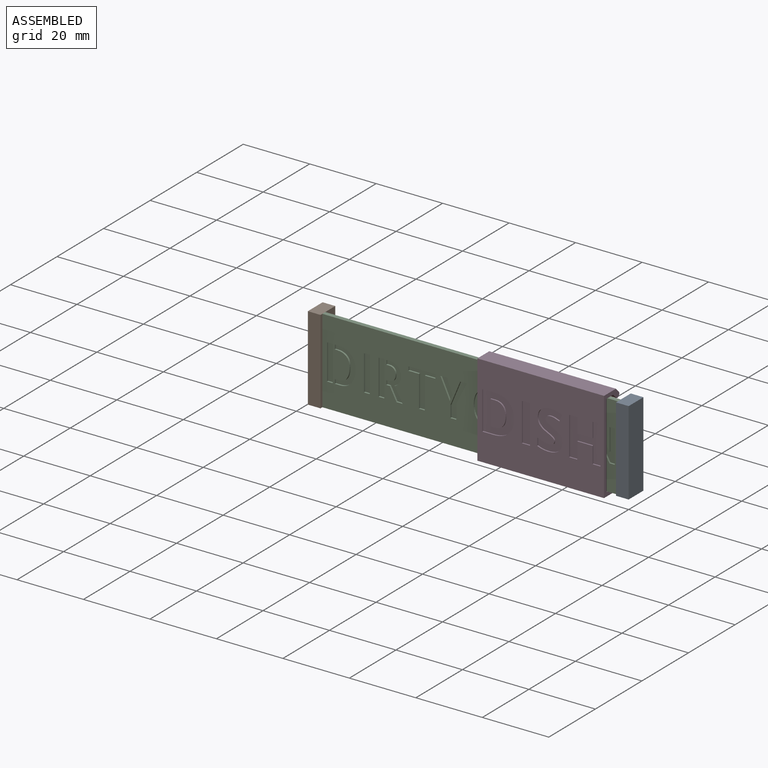
[diagram: assembled view]
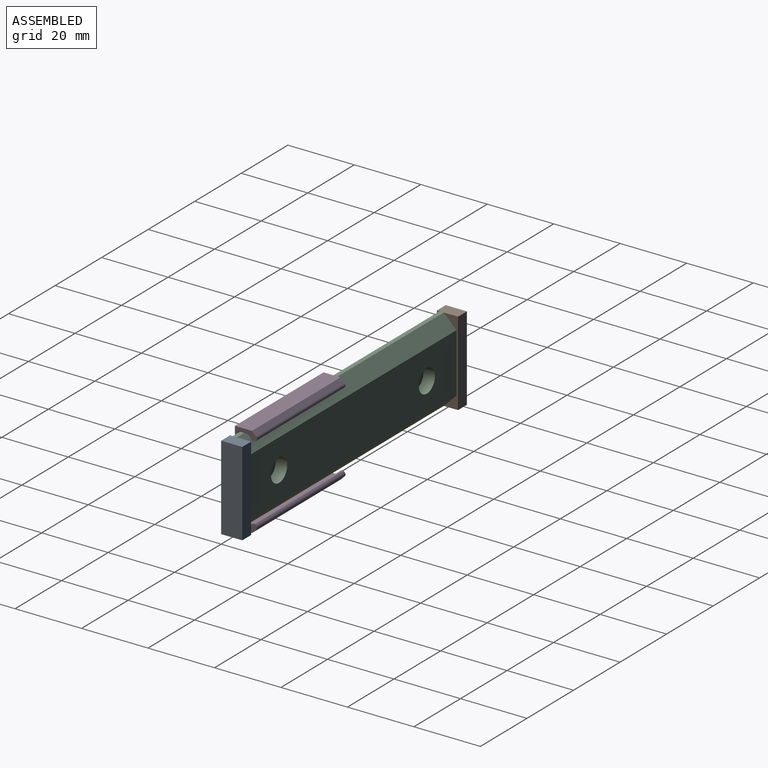
[diagram: assembled view, second angle]
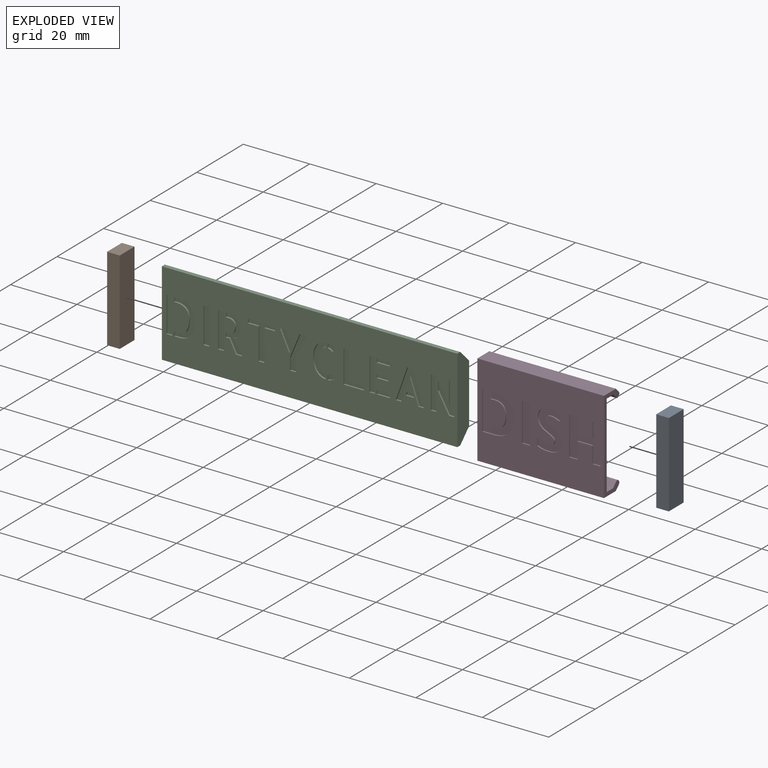
[diagram: exploded view]
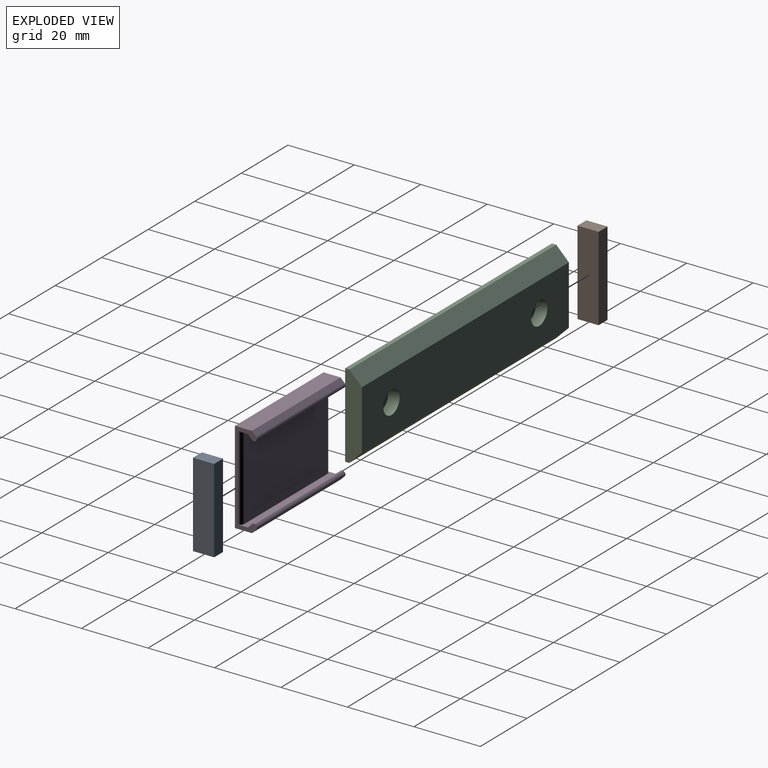
[diagram: exploded view, second angle]
ASSEMBLY  parts=4 mates=4
PART A: 6 faces, bbox 6.4x25.4x3.8 mm
  f0: plane 6.35x3.81mm, normal (0,-1,0), area 24.2mm2, adj f1,f3,f4,f5
  f1: plane 25.4x3.81mm, normal (1,0,0), area 96.8mm2, adj f0,f2,f4,f5
  f2: plane 6.35x3.81mm, normal (0,1,0), area 24.2mm2, adj f1,f3,f4,f5
  f3: plane 25.4x3.81mm, normal (-1,0,0), area 96.8mm2, adj f0,f2,f4,f5
  f4: plane 25.4x6.35mm, normal (0,0,1), area 161.3mm2, adj f0,f1,f2,f3
  f5: plane 25.4x6.35mm, normal (0,0,-1), area 161.3mm2, adj f0,f1,f2,f3
PART B: same geometry as A
PART C: 182 faces, bbox 88.9x25.4x5.1 mm
  f0: plane 88.9x25.4mm, normal (0,0,1), area 1951.8mm2, adj f1,f2,f3,f4,f12,f13,f14,f15
  f1: plane 25.4x5.08mm, normal (-1,0,0), area 114.5mm2, adj f0,f2,f4,f5,f6,f7
  f2: plane 88.9x1.27mm, normal (0,-1,0), area 112.9mm2, adj f0,f1,f3,f6
  f3: plane 25.4x5.08mm, normal (1,0,0), area 114.5mm2, adj f0,f2,f4,f5,f6,f7
  f4: plane 88.9x1.27mm, normal (0,1,0), area 112.9mm2, adj f0,f1,f3,f7
  f5: plane 88.9x17.78mm, normal (0,0,-1), area 1503.7mm2, adj f1,f3,f6,f7,f8,f10
  f6: plane 88.9x3.81mm, normal (0,-0.71,-0.71), area 479mm2, adj f1,f2,f3,f5
  f7: plane 88.9x3.81mm, normal (0,0.71,-0.71), area 479mm2, adj f1,f3,f4,f5
  f8: cylinder r=3.5mm len=7mm, axis (0,0,-1), area 77mm2, adj f5,f9
  f9: plane 7x7mm, normal (0,0,-1), area 38.5mm2, adj f8
  f10: cylinder r=3.5mm len=7mm, axis (0,0,-1), area 77mm2, adj f5,f11
  f11: plane 7x7mm, normal (0,0,-1), area 38.5mm2, adj f10
  f12: extruded ~0.65x0.52mm, area 0.4mm2, adj f0,f13,f16,f17
  f13: plane 1.11x0.99mm, normal (-0.66,0.75,0), area 0.7mm2, adj f0,f12,f14,f17
  f14: extruded ~2.51x1.05mm, area 1.4mm2, adj f0,f13,f15,f17
  f15: plane 1.32x0.5mm, normal (1,0,0), area 0.7mm2, adj f0,f14,f16,f17
  f16: extruded ~0.75x0.5mm, area 0.4mm2, adj f0,f12,f15,f17
  f17: plane 2.51x2.04mm, normal (0,0,1), area 3mm2, adj f12,f13,f14,f15,f16
  f18: plane 1.19x0.5mm, normal (-1,0,0), area 0.6mm2, adj f0,f19,f25,f26
  f19: plane 8.12x0.5mm, normal (0,-1,0), area 4.1mm2, adj f0,f18,f20,f26
  f20: plane 1.19x0.5mm, normal (1,0,0), area 0.6mm2, adj f0,f19,f21,f26
  f21: plane 3.18x0.5mm, normal (0,1,0), area 1.6mm2, adj f0,f20,f22,f26
  f22: plane 9.48x0.5mm, normal (1,0,0), area 4.7mm2, adj f0,f21,f23,f26
  f23: plane 1.75x0.5mm, normal (0,1,0), area 0.9mm2, adj f0,f22,f24,f26
  f24: plane 9.48x0.5mm, normal (-1,0,0), area 4.7mm2, adj f0,f23,f25,f26
  f25: plane 3.18x0.5mm, normal (0,1,0), area 1.6mm2, adj f0,f18,f24,f26
  f26: plane 10.66x8.12mm, normal (0,0,1), area 26.2mm2, adj f18,f19,f20,f21,f22,f23,f24,f25
  f27: plane 1.98x0.5mm, normal (0,-1,0), area 1mm2, adj f0,f28,f32,f33
  f28: plane 7.1x2.95mm, normal (0.92,-0.38,0), area 3.8mm2, adj f0,f27,f29,f33
  f29: plane 3.56x0.5mm, normal (1,0,0), area 1.8mm2, adj f0,f28,f30,f33
  f30: plane 1.76x0.5mm, normal (0,1,0), area 0.9mm2, adj f0,f29,f31,f33
  f31: plane 4.34x0.5mm, normal (-1,0,0), area 2.2mm2, adj f0,f30,f32,f33
  f32: plane 6.32x3.17mm, normal (-0.89,0.45,0), area 3.5mm2, adj f0,f27,f31,f33
  f33: plane 10.66x4.93mm, normal (0,0,1), area 18.3mm2, adj f27,f28,f29,f30,f31,f32
  f34: plane 4.15x1.61mm, normal (-0.93,-0.36,0), area 2.2mm2, adj f0,f35,f37,f38
  f35: plane 1.98x0.5mm, normal (0,-1,0), area 1mm2, adj f0,f34,f36,f38
  f36: plane 6.05x2.81mm, normal (0.91,0.42,0), area 3.3mm2, adj f0,f35,f37,f38
  f37: plane 1.9x0.78mm, normal (-0.92,0.38,0), area 1mm2, adj f0,f34,f36,f38
  f38: plane 6.05x3.59mm, normal (0,0,1), area 9.1mm2, adj f34,f35,f36,f37
  f39: extruded ~0.75x0.5mm, area 0.4mm2, adj f0,f40,f44,f45
  f40: plane 1.32x0.5mm, normal (1,0,0), area 0.7mm2, adj f0,f39,f41,f45
  f41: extruded ~1.37x0.5mm, area 0.7mm2, adj f0,f40,f42,f45
  f42: extruded ~1.13x0.76mm, area 0.7mm2, adj f0,f41,f43,f45
  f43: plane 1.11x0.97mm, normal (-0.66,-0.75,0), area 0.7mm2, adj f0,f42,f44,f45
  f44: extruded ~0.65x0.51mm, area 0.4mm2, adj f0,f39,f43,f45
  f45: plane 2.51x2.04mm, normal (0,0,1), area 3mm2, adj f39,f40,f41,f42,f43,f44
  f46: extruded ~2.09x0.5mm, area 1.1mm2, adj f0,f47,f63,f64
  f47: extruded ~2.1x0.5mm, area 1.1mm2, adj f0,f46,f48,f64
  f48: extruded ~1.54x0.79mm, area 0.9mm2, adj f0,f47,f49,f64
  f49: extruded ~1.19x0.97mm, area 0.8mm2, adj f0,f48,f50,f64
  f50: extruded ~1.5x0.5mm, area 0.8mm2, adj f0,f49,f51,f64
  f51: plane 1.31x0.5mm, normal (-1,0,0), area 0.7mm2, adj f0,f50,f52,f64
  f52: extruded ~0.82x0.5mm, area 0.4mm2, adj f0,f51,f53,f64
  f53: extruded ~0.69x0.69mm, area 0.5mm2, adj f0,f52,f54,f64
  f54: extruded ~1.12x0.5mm, area 0.6mm2, adj f0,f53,f55,f64
  f55: extruded ~1.6x0.5mm, area 0.8mm2, adj f0,f54,f56,f64
  f56: extruded ~1.59x0.5mm, area 0.8mm2, adj f0,f55,f57,f64
  f57: extruded ~1.11x0.5mm, area 0.6mm2, adj f0,f56,f58,f64
  f58: extruded ~0.68x0.67mm, area 0.5mm2, adj f0,f57,f59,f64
  f59: extruded ~0.83x0.5mm, area 0.4mm2, adj f0,f58,f60,f64
  f60: plane 1.33x0.5mm, normal (-1,0,0), area 0.7mm2, adj f0,f59,f61,f64
  f61: extruded ~1.5x0.5mm, area 0.8mm2, adj f0,f60,f62,f64
  f62: extruded ~1.19x0.97mm, area 0.8mm2, adj f0,f61,f63,f64
  f63: extruded ~1.53x0.79mm, area 0.9mm2, adj f0,f46,f62,f64
  f64: plane 10.02x3.77mm, normal (0,0,1), area 17.6mm2, adj f46,f47,f48,f49,f50,f51,f52,f53
  f65: plane 8.61x0.5mm, normal (-1,0,0), area 4.3mm2, adj f0,f66,f70,f71
  f66: plane 1.63x0.5mm, normal (0,-1,0), area 0.8mm2, adj f0,f65,f67,f71
  f67: plane 9.82x0.5mm, normal (1,0,0), area 4.9mm2, adj f0,f66,f68,f71
  f68: plane 6.15x0.5mm, normal (0,1,0), area 3.1mm2, adj f0,f67,f69,f71
  f69: plane 1.21x0.5mm, normal (-1,0,0), area 0.6mm2, adj f0,f68,f70,f71
  f70: plane 4.52x0.5mm, normal (0,-1,0), area 2.3mm2, adj f0,f65,f69,f71
  f71: plane 9.82x6.15mm, normal (0,0,1), area 21.5mm2, adj f65,f66,f67,f68,f69,f70
  f72: plane 1.62x0.5mm, normal (0,-1,0), area 0.8mm2, adj f0,f73,f75,f76
  f73: plane 9.82x0.5mm, normal (1,0,0), area 4.9mm2, adj f0,f72,f74,f76
  f74: plane 1.62x0.5mm, normal (0,1,0), area 0.8mm2, adj f0,f73,f75,f76
  f75: plane 9.82x0.5mm, normal (-1,0,0), area 4.9mm2, adj f0,f72,f74,f76
  f76: plane 9.82x1.62mm, normal (0,0,1), area 16mm2, adj f72,f73,f74,f75
  f77: plane 1.65x0.5mm, normal (0,1,0), area 0.8mm2, adj f0,f78,f83,f84
  f78: plane 9.81x3.41mm, normal (-0.94,-0.33,0), area 5.2mm2, adj f0,f77,f79,f84
  f79: plane 1.59x0.5mm, normal (0,-1,0), area 0.8mm2, adj f0,f78,f80,f84
  f80: plane 9.81x3.44mm, normal (0.94,-0.33,0), area 5.2mm2, adj f0,f79,f81,f84
  f81: plane 1.67x0.5mm, normal (0,1,0), area 0.8mm2, adj f0,f80,f82,f84
  f82: plane 7.36x2.57mm, normal (-0.94,0.33,0), area 3.9mm2, adj f0,f81,f83,f84
  f83: plane 7.36x2.55mm, normal (0.95,0.33,0), area 3.9mm2, adj f0,f77,f82,f84
  f84: plane 9.81x8.44mm, normal (0,0,1), area 30.3mm2, adj f77,f78,f79,f80,f81,f82,f83
  f85: plane 1.21x0.5mm, normal (-1,0,0), area 0.6mm2, adj f0,f86,f88,f89
  f86: plane 3.97x0.5mm, normal (0,-1,0), area 2mm2, adj f0,f85,f87,f89
  f87: plane 1.21x0.5mm, normal (1,0,0), area 0.6mm2, adj f0,f86,f88,f89
  f88: plane 3.97x0.5mm, normal (0,1,0), area 2mm2, adj f0,f85,f87,f89
  f89: plane 3.97x1.21mm, normal (0,0,1), area 4.8mm2, adj f85,f86,f87,f88
  f90: plane 3.97x0.5mm, normal (0,-1,0), area 2mm2, adj f0,f91,f93,f94
  f91: plane 1.21x0.5mm, normal (1,0,0), area 0.6mm2, adj f0,f90,f92,f94
  f92: plane 3.97x0.5mm, normal (0,1,0), area 2mm2, adj f0,f91,f93,f94
  f93: plane 1.21x0.5mm, normal (-1,0,0), area 0.6mm2, adj f0,f90,f92,f94
  f94: plane 3.97x1.21mm, normal (0,0,1), area 4.8mm2, adj f90,f91,f92,f93
  f95: plane 3.56x0.5mm, normal (0,1,0), area 1.8mm2, adj f0,f96,f98,f99
  f96: plane 1.09x0.5mm, normal (-1,0,0), area 0.5mm2, adj f0,f95,f97,f99
  f97: plane 3.56x0.5mm, normal (0,-1,0), area 1.8mm2, adj f0,f96,f98,f99
  f98: plane 1.09x0.5mm, normal (1,0,0), area 0.5mm2, adj f0,f95,f97,f99
  f99: plane 3.56x1.09mm, normal (0,0,1), area 3.9mm2, adj f95,f96,f97,f98
  f100: plane 1.84x0.5mm, normal (0,1,0), area 0.9mm2, adj f0,f101,f124,f125
  f101: plane 4.2x2.43mm, normal (-0.87,-0.5,0), area 2.4mm2, adj f0,f100,f102,f125
  f102: extruded ~1.45x1.2mm, area 1mm2, adj f0,f101,f103,f125
  f103: extruded ~1.97x0.54mm, area 1mm2, adj f0,f102,f104,f125
  f104: extruded ~1.38x0.5mm, area 0.7mm2, adj f0,f103,f105,f125
  f105: extruded ~1.05x0.85mm, area 0.7mm2, adj f0,f104,f106,f125
  f106: extruded ~1.19x0.65mm, area 0.7mm2, adj f0,f105,f107,f125
  f107: extruded ~1.34x0.5mm, area 0.7mm2, adj f0,f106,f108,f125
  f108: plane 0.74x0.5mm, normal (0,-1,0), area 0.4mm2, adj f0,f107,f109,f125
  f109: plane 1.31x0.5mm, normal (1,0,0), area 0.7mm2, adj f0,f108,f110,f125
  f110: plane 0.71x0.5mm, normal (0,1,0), area 0.4mm2, adj f0,f109,f111,f125
  f111: extruded ~1.07x0.5mm, area 0.6mm2, adj f0,f110,f112,f125
  f112: extruded ~0.63x0.52mm, area 0.4mm2, adj f0,f111,f113,f125
  f113: extruded ~0.65x0.5mm, area 0.4mm2, adj f0,f112,f114,f125
  f114: extruded ~0.6x0.5mm, area 0.3mm2, adj f0,f113,f115,f125
  f115: extruded ~1.09x0.5mm, area 0.6mm2, adj f0,f114,f116,f125
  f116: extruded ~0.69x0.5mm, area 0.4mm2, adj f0,f115,f117,f125
  f117: extruded ~0.58x0.5mm, area 0.3mm2, adj f0,f116,f118,f125
  f118: extruded ~0.64x0.5mm, area 0.3mm2, adj f0,f117,f119,f125
  f119: plane 0.98x0.5mm, normal (0,-1,0), area 0.5mm2, adj f0,f118,f120,f125
  f120: plane 1.27x0.5mm, normal (1,0,0), area 0.6mm2, adj f0,f119,f121,f125
  f121: plane 0.81x0.5mm, normal (0,1,0), area 0.4mm2, adj f0,f120,f122,f125
  f122: extruded ~0.5x0.15mm, area 0.1mm2, adj f0,f121,f123,f125
  f123: extruded ~0.5x0.09mm, area 0mm2, adj f0,f122,f124,f125
  f124: plane 3.86x2.01mm, normal (0.89,0.46,0), area 2.2mm2, adj f0,f100,f123,f125
  f125: plane 10.66x4.9mm, normal (0,0,1), area 21.8mm2, adj f100,f101,f102,f103,f104,f105,f106,f107
  f126: plane 1.74x0.5mm, normal (0,-1,0), area 0.9mm2, adj f0,f127,f129,f130
  f127: plane 10.66x0.5mm, normal (1,0,0), area 5.3mm2, adj f0,f126,f128,f130
  f128: plane 1.74x0.5mm, normal (0,1,0), area 0.9mm2, adj f0,f127,f129,f130
  f129: plane 10.66x0.5mm, normal (-1,0,0), area 5.3mm2, adj f0,f126,f128,f130
  f130: plane 10.66x1.74mm, normal (0,0,1), area 18.5mm2, adj f126,f127,f128,f129
  f131: plane 1.76x0.5mm, normal (0,1,0), area 0.9mm2, adj f0,f132,f134,f135
  f132: plane 10.66x0.5mm, normal (-1,0,0), area 5.3mm2, adj f0,f131,f133,f135
  f133: plane 1.76x0.5mm, normal (0,-1,0), area 0.9mm2, adj f0,f132,f134,f135
  f134: plane 10.66x0.5mm, normal (1,0,0), area 5.3mm2, adj f0,f131,f133,f135
  f135: plane 10.66x1.76mm, normal (0,0,1), area 18.8mm2, adj f131,f132,f133,f134
  f136: extruded ~2.36x0.5mm, area 1.2mm2, adj f0,f137,f157,f158
  f137: plane 0.88x0.5mm, normal (0,-1,0), area 0.4mm2, adj f0,f136,f138,f158
  f138: plane 1.31x0.5mm, normal (1,0,0), area 0.7mm2, adj f0,f137,f139,f158
  f139: plane 0.5x0.42mm, normal (0,1,0), area 0.2mm2, adj f0,f138,f140,f158
  f140: extruded ~2.02x0.5mm, area 1mm2, adj f0,f139,f141,f158
  f141: extruded ~1.24x0.85mm, area 0.8mm2, adj f0,f140,f142,f158
  f142: extruded ~1.18x0.61mm, area 0.7mm2, adj f0,f141,f143,f158
  f143: extruded ~1.32x0.5mm, area 0.7mm2, adj f0,f142,f144,f158
  f144: extruded ~3.27x0.78mm, area 1.7mm2, adj f0,f143,f145,f158
  f145: extruded ~2.55x1.13mm, area 1.5mm2, adj f0,f144,f146,f158
  f146: plane 1.13x0.5mm, normal (0,-1,0), area 0.6mm2, adj f0,f145,f147,f158
  f147: plane 1.27x0.5mm, normal (1,0,0), area 0.6mm2, adj f0,f146,f148,f158
  f148: plane 1.71x0.5mm, normal (0,1,0), area 0.9mm2, adj f0,f147,f149,f158
  f149: extruded ~0.62x0.5mm, area 0.3mm2, adj f0,f148,f150,f158
  f150: extruded ~0.93x0.5mm, area 0.5mm2, adj f0,f149,f151,f158
  f151: extruded ~1.05x0.54mm, area 0.6mm2, adj f0,f150,f152,f158
  f152: extruded ~0.99x0.98mm, area 0.7mm2, adj f0,f151,f153,f158
  f153: extruded ~1.56x0.72mm, area 0.9mm2, adj f0,f152,f154,f158
  f154: extruded ~2.25x0.5mm, area 1.1mm2, adj f0,f153,f155,f158
  f155: extruded ~1.86x0.5mm, area 0.9mm2, adj f0,f154,f156,f158
  f156: extruded ~1.61x1.01mm, area 1mm2, adj f0,f155,f157,f158
  f157: extruded ~1.69x1.14mm, area 1mm2, adj f0,f136,f156,f158
  f158: plane 10.66x6.28mm, normal (0,0,1), area 25.6mm2, adj f136,f137,f138,f139,f140,f141,f142,f143
  f159: plane 1.08x0.5mm, normal (-0.94,-0.34,0), area 0.6mm2, adj f0,f160,f162,f163
  f160: plane 1.79x0.5mm, normal (0,-1,0), area 0.9mm2, adj f0,f159,f161,f163
  f161: plane 1.08x0.5mm, normal (0.95,-0.33,0), area 0.6mm2, adj f0,f160,f162,f163
  f162: plane 2.55x0.5mm, normal (0,1,0), area 1.3mm2, adj f0,f159,f161,f163
  f163: plane 2.55x1.08mm, normal (0,0,1), area 2.3mm2, adj f159,f160,f161,f162
  f164: plane 1.62x0.5mm, normal (0,-1,0), area 0.8mm2, adj f0,f165,f170,f171
  f165: plane 6.77x0.5mm, normal (1,0,0), area 3.4mm2, adj f0,f164,f166,f171
  f166: plane 5.83x3.31mm, normal (-0.87,-0.49,0), area 3.3mm2, adj f0,f165,f167,f171
  f167: plane 3.07x0.5mm, normal (1,0,0), area 1.5mm2, adj f0,f166,f168,f171
  f168: plane 5.81x3.31mm, normal (0.87,0.49,0), area 3.3mm2, adj f0,f167,f169,f171
  f169: plane 1.62x0.5mm, normal (0,1,0), area 0.8mm2, adj f0,f168,f170,f171
  f170: plane 9.82x0.5mm, normal (-1,0,0), area 4.9mm2, adj f0,f164,f169,f171
  f171: plane 9.82x4.93mm, normal (0,0,1), area 26.1mm2, adj f164,f165,f166,f167,f168,f169,f170
  f172: plane 9.82x0.5mm, normal (1,0,0), area 4.9mm2, adj f0,f173,f175,f176
  f173: plane 1.63x0.5mm, normal (0,1,0), area 0.8mm2, adj f0,f172,f174,f176
  f174: plane 9.82x0.5mm, normal (-1,0,0), area 4.9mm2, adj f0,f173,f175,f176
  f175: plane 1.63x0.5mm, normal (0,-1,0), area 0.8mm2, adj f0,f172,f174,f176
  f176: plane 9.82x1.63mm, normal (0,0,1), area 16mm2, adj f172,f173,f174,f175
  f177: plane 1.74x0.5mm, normal (0,-1,0), area 0.9mm2, adj f0,f178,f180,f181
  f178: plane 10.66x0.5mm, normal (1,0,0), area 5.3mm2, adj f0,f177,f179,f181
  f179: plane 1.74x0.5mm, normal (0,1,0), area 0.9mm2, adj f0,f178,f180,f181
  f180: plane 10.66x0.5mm, normal (-1,0,0), area 5.3mm2, adj f0,f177,f179,f181
  f181: plane 10.66x1.74mm, normal (0,0,1), area 18.5mm2, adj f177,f178,f179,f180
PART D: 81 faces, bbox 38.1x27.8x6.6 mm
  f0: plane 38.1x27.8mm, normal (0,0,-1), area 818mm2, adj f2,f3,f4,f5,f20,f21,f22,f23
  f1: plane 35.56x25.4mm, normal (0,0,1), area 903.2mm2, adj f6,f7,f18,f19
  f2: plane 27.8x6.59mm, normal (1,0,0), area 37.6mm2, adj f0,f3,f5,f6,f7,f8,f9,f10
  f3: plane 38.1x5.11mm, normal (0,1,0), area 194.5mm2, adj f0,f2,f4,f8
  f4: plane 27.8x6.59mm, normal (-1,0,0), area 37.6mm2, adj f0,f3,f5,f6,f7,f8,f9,f10
  f5: plane 38.1x5.11mm, normal (0,-1,0), area 194.5mm2, adj f0,f2,f4,f13
  f6: plane 38.1x3.18mm, normal (0,-1,0), area 73.3mm2, adj f1,f2,f4,f12,f18,f19
  f7: plane 38.1x3.18mm, normal (0,1,0), area 73.3mm2, adj f1,f2,f4,f14,f18,f19
  f8: plane 38.1x1.26mm, normal (0,0.71,0.71), area 67.7mm2, adj f2,f3,f4,f9
  f9: cylinder r=0.76mm len=38.1mm, axis (1,0,0), area 45.6mm2, adj f2,f4,f8,f10
  f10: plane 38.1x0.21mm, normal (0,-0.71,0.71), area 11.4mm2, adj f2,f4,f9,f11
  f11: cylinder r=0.64mm len=38.1mm, axis (1,0,0), area 38mm2, adj f2,f4,f10,f12
  f12: plane 38.1x1.35mm, normal (0,-0.71,-0.71), area 72.6mm2, adj f2,f4,f6,f11
  f13: plane 38.1x1.26mm, normal (0,-0.71,0.71), area 67.7mm2, adj f2,f4,f5,f17
  f14: plane 38.1x1.35mm, normal (0,0.71,-0.71), area 72.6mm2, adj f2,f4,f7,f15
  f15: cylinder r=0.64mm len=38.1mm, axis (1,0,0), area 38mm2, adj f2,f4,f14,f16
  f16: plane 38.1x0.21mm, normal (0,0.71,0.71), area 11.4mm2, adj f2,f4,f15,f17
  f17: cylinder r=0.76mm len=38.1mm, axis (1,0,0), area 45.6mm2, adj f2,f4,f13,f16
  f18: cylinder r=1.27mm len=25.4mm, axis (0,-1,0), area 50.7mm2, adj f1,f2,f6,f7
  f19: cylinder r=1.27mm len=25.4mm, axis (0,1,0), area 50.7mm2, adj f1,f4,f6,f7
  f20: plane 2.44x0.4mm, normal (0,-1,0), area 1mm2, adj f0,f21,f23,f24
  f21: plane 11.52x0.4mm, normal (1,0,0), area 4.6mm2, adj f0,f20,f22,f24
  f22: plane 2.44x0.4mm, normal (0,1,0), area 1mm2, adj f0,f21,f23,f24
  f23: plane 11.52x0.4mm, normal (-1,0,0), area 4.6mm2, adj f0,f20,f22,f24
  f24: plane 11.52x2.44mm, normal (0,0,-1), area 28.1mm2, adj f20,f21,f22,f23
  f25: extruded ~1.9x0.6mm, area 0.8mm2, adj f0,f26,f52,f53
  f26: extruded ~2.46x1.12mm, area 1.1mm2, adj f0,f25,f27,f53
  f27: extruded ~3.12x0.9mm, area 1.3mm2, adj f0,f26,f28,f53
  f28: extruded ~3.26x0.7mm, area 1.3mm2, adj f0,f27,f29,f53
  f29: plane 2.27x0.4mm, normal (1,0,0), area 0.9mm2, adj f0,f28,f30,f53
  f30: extruded ~1.97x0.73mm, area 0.8mm2, adj f0,f29,f31,f53
  f31: extruded ~1.48x0.4mm, area 0.6mm2, adj f0,f30,f32,f53
  f32: extruded ~1.23x0.4mm, area 0.5mm2, adj f0,f31,f33,f53
  f33: extruded ~0.91x0.43mm, area 0.4mm2, adj f0,f32,f34,f53
  f34: extruded ~0.6x0.4mm, area 0.3mm2, adj f0,f33,f35,f53
  f35: extruded ~0.56x0.51mm, area 0.3mm2, adj f0,f34,f36,f53
  f36: extruded ~1.49x0.78mm, area 0.7mm2, adj f0,f35,f37,f53
  f37: extruded ~1.58x0.95mm, area 0.7mm2, adj f0,f36,f38,f53
  f38: extruded ~1.06x0.84mm, area 0.5mm2, adj f0,f37,f39,f53
  f39: extruded ~1.42x0.4mm, area 0.6mm2, adj f0,f38,f40,f53
  f40: extruded ~2.4x1.04mm, area 1.1mm2, adj f0,f39,f41,f53
  f41: extruded ~2.86x0.87mm, area 1.2mm2, adj f0,f40,f42,f53
  f42: extruded ~1.71x0.4mm, area 0.7mm2, adj f0,f41,f43,f53
  f43: extruded ~1.71x0.6mm, area 0.7mm2, adj f0,f42,f44,f53
  f44: plane 1.9x0.79mm, normal (-0.92,-0.38,0), area 0.8mm2, adj f0,f43,f45,f53
  f45: extruded ~1.53x0.53mm, area 0.6mm2, adj f0,f44,f46,f53
  f46: extruded ~1.18x0.4mm, area 0.5mm2, adj f0,f45,f47,f53
  f47: extruded ~1.06x0.4mm, area 0.5mm2, adj f0,f46,f48,f53
  f48: extruded ~0.84x0.4mm, area 0.4mm2, adj f0,f47,f49,f53
  f49: extruded ~0.56x0.4mm, area 0.2mm2, adj f0,f48,f50,f53
  f50: extruded ~0.48x0.47mm, area 0.3mm2, adj f0,f49,f51,f53
  f51: extruded ~1.55x0.81mm, area 0.7mm2, adj f0,f50,f52,f53
  f52: extruded ~2.21x1.55mm, area 1.1mm2, adj f0,f25,f51,f53
  f53: plane 11.84x7.51mm, normal (0,0,-1), area 50mm2, adj f25,f26,f27,f28,f29,f30,f31,f32
  f54: plane 11.52x0.4mm, normal (-1,0,0), area 4.6mm2, adj f0,f55,f65,f66
  f55: plane 2.44x0.4mm, normal (0,-1,0), area 1mm2, adj f0,f54,f56,f66
  f56: plane 4.97x0.4mm, normal (1,0,0), area 2mm2, adj f0,f55,f57,f66
  f57: plane 4.56x0.4mm, normal (0,-1,0), area 1.8mm2, adj f0,f56,f58,f66
  f58: plane 4.97x0.4mm, normal (-1,0,0), area 2mm2, adj f0,f57,f59,f66
  f59: plane 2.44x0.4mm, normal (0,-1,0), area 1mm2, adj f0,f58,f60,f66
  f60: plane 11.52x0.4mm, normal (1,0,0), area 4.6mm2, adj f0,f59,f61,f66
  f61: plane 2.44x0.4mm, normal (0,1,0), area 1mm2, adj f0,f60,f62,f66
  f62: plane 4.51x0.4mm, normal (-1,0,0), area 1.8mm2, adj f0,f61,f63,f66
  f63: plane 4.56x0.4mm, normal (0,1,0), area 1.8mm2, adj f0,f62,f64,f66
  f64: plane 4.51x0.4mm, normal (1,0,0), area 1.8mm2, adj f0,f63,f65,f66
  f65: plane 2.44x0.4mm, normal (0,1,0), area 1mm2, adj f0,f54,f64,f66
  f66: plane 11.52x9.44mm, normal (0,0,-1), area 65.4mm2, adj f54,f55,f56,f57,f58,f59,f60,f61
  f67: extruded ~4.16x1.56mm, area 1.8mm2, adj f0,f68,f78,f79
  f68: extruded ~4.36x1.62mm, area 1.9mm2, adj f0,f67,f69,f79
  f69: extruded ~4.67x1.51mm, area 2mm2, adj f0,f68,f70,f79
  f70: plane 3.26x0.4mm, normal (0,-1,0), area 1.3mm2, adj f0,f69,f71,f79
  f71: plane 11.52x0.4mm, normal (1,0,0), area 4.6mm2, adj f0,f70,f72,f79
  f72: plane 3.61x0.4mm, normal (0,1,0), area 1.4mm2, adj f0,f71,f78,f79
  f73: extruded ~3.79x3.53mm, area 2.4mm2, adj f74,f77,f79,f80
  f74: extruded ~3.71x3.28mm, area 2.3mm2, adj f73,f75,f79,f80
  f75: plane 1.3x0.4mm, normal (0,-1,0), area 0.5mm2, adj f74,f76,f79,f80
  f76: plane 7.5x0.4mm, normal (-1,0,0), area 3mm2, adj f75,f77,f79,f80
  f77: plane 1.05x0.4mm, normal (0,1,0), area 0.4mm2, adj f73,f76,f79,f80
  f78: extruded ~4.38x1.49mm, area 1.9mm2, adj f0,f67,f72,f79
  f79: plane 11.52x9.56mm, normal (0,0,-1), area 67.5mm2, adj f67,f68,f69,f70,f71,f72,f73,f74
  f80: plane 7.5x4.57mm, normal (0,0,-1), area 30mm2, adj f73,f74,f75,f76,f77
PLACE A rot(axis=(-0.58,-0.58,0.58),120deg) t=(0,6.35,25.4)mm
PLACE B rot(axis=(-0.58,0.58,-0.58),120deg) t=(-96.52,0,25.4)mm
PLACE C rot(axis=(1,0,0),90deg) t=(-92.71,5.88,0)mm
PLACE D rot(axis=(-1,0,0),90deg) t=(-45.02,-0.7,25.4)mm
MATE fastened B.f4 <-> C.f1  axis (1,0,0) through (-92.71,3.17,12.7)mm
MATE fastened A.f4 <-> C.f3  axis (-1,0,0) through (-3.81,3.17,12.7)mm
MATE planar D.f1 <-> C.f26  axis (0,1,0) through (-25.97,1.3,12.7)mm
MATE planar D.f7 <-> C.f4  axis (0,0,-1) through (-25.97,2.24,25.4)mm
